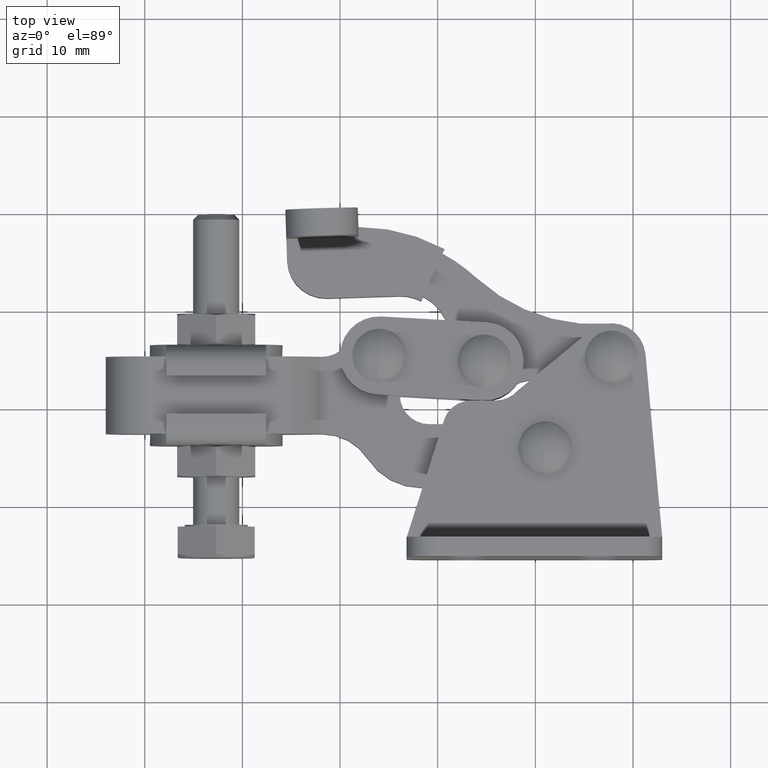
[diagram: clean part render]
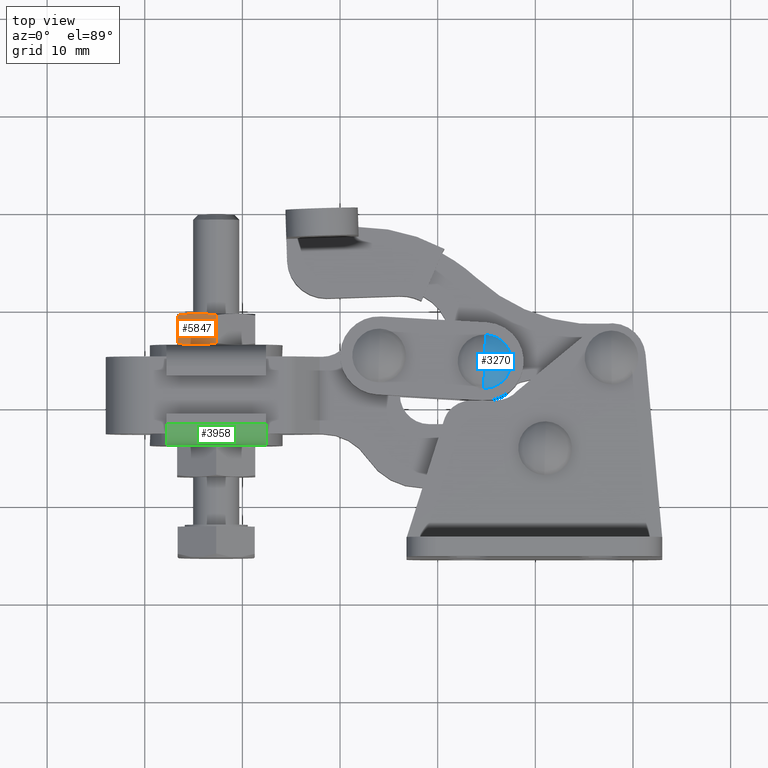
[diagram: same view with three faces highlighted in distinct colors, each labeled with its STEP entity id]
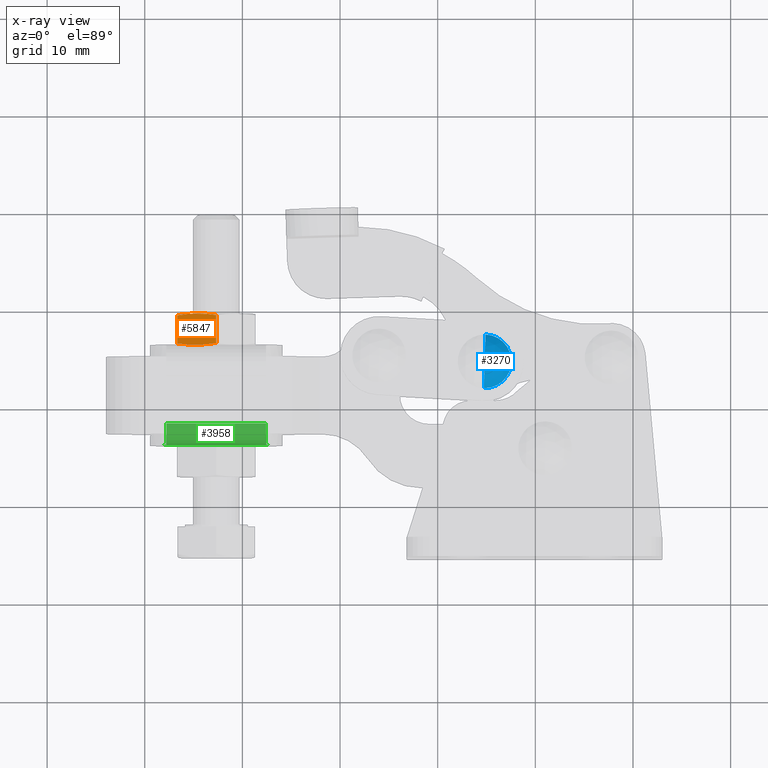
[diagram: x-ray of the same camera — body ghosted, the three highlighted faces saturated]
A machine part, top view with three faces highlighted in distinct colors.
The next image is the same camera in x-ray (body ghosted, the three faces saturated) — at least one of them is partly hidden behind the body in this view.
Their STEP definitions:

[orange] entity #5847 — the highlighted planar face has unit normal (-0.5, 0, 0.866).
#1 = LINE ( 'NONE', #4203, #8735 ) ;
#9 = VERTEX_POINT ( 'NONE', #7991 ) ;
#443 = VERTEX_POINT ( 'NONE', #7685 ) ;
#502 = EDGE_CURVE ( 'NONE', #2399, #5681, #8459, .T. ) ;
#769 = B_SPLINE_CURVE_WITH_KNOTS ( 'NONE', 3,
 ( #1884, #869, #1100, #3465 ),
 .UNSPECIFIED., .F., .F.,
 ( 4, 4 ),
 ( 0.002309632016866309800, 0.004619033093624826500 ),
 .UNSPECIFIED. ) ;
#869 = CARTESIAN_POINT ( 'NONE',  ( -45.34830938727169800, 29.49999999999994300, 1.079201435668463800 ) ) ;
#948 = CARTESIAN_POINT ( 'NONE',  ( -46.68164272060504100, 26.29999999999994700, 0.3094010767489573900 ) ) ;
#984 = FACE_OUTER_BOUND ( 'NONE', #8222, .T. ) ;
#990 = EDGE_CURVE ( 'NONE', #9, #6026, #7787, .T. ) ;
#1000 = CARTESIAN_POINT ( 'NONE',  ( -43.34830938727162700, 29.43732615494361200, 2.233901974047759300 ) ) ;
#1100 = CARTESIAN_POINT ( 'NONE',  ( -46.01497605393837600, 29.43732615494361200, 0.6943012562087109700 ) ) ;
#1169 = ORIENTED_EDGE ( 'NONE', *, *, #7075, .F. ) ;
#1195 = EDGE_CURVE ( 'NONE', #6026, #443, #769, .T. ) ;
#1512 = CARTESIAN_POINT ( 'NONE',  ( -46.68164272060504100, 26.46580753730947300, 0.3094010767489643300 ) ) ;
#1540 = ORIENTED_EDGE ( 'NONE', *, *, #7161, .T. ) ;
#1571 = DIRECTION ( 'NONE',  ( -0.4999999999999996700, 0.0000000000000000000, 0.8660254037844388200 ) ) ;
#1715 = VECTOR ( 'NONE', #7866, 1000.000000000000000 ) ;
#1773 = ORIENTED_EDGE ( 'NONE', *, *, #990, .T. ) ;
#1884 = CARTESIAN_POINT ( 'NONE',  ( -44.68164272060501900, 29.49999999999995000, 1.464101615128209800 ) ) ;
#2399 = VERTEX_POINT ( 'NONE', #3760 ) ;
#2744 = CARTESIAN_POINT ( 'NONE',  ( -44.01497605393832700, 26.29999999999995500, 1.849001794587987700 ) ) ;
#2806 = VERTEX_POINT ( 'NONE', #4629 ) ;
#2975 = AXIS2_PLACEMENT_3D ( 'NONE', #7508, #1571, #4138 ) ;
#3465 = CARTESIAN_POINT ( 'NONE',  ( -46.68164272060504100, 29.33419246269042400, 0.3094010767489643300 ) ) ;
#3760 = CARTESIAN_POINT ( 'NONE',  ( -42.68164272060499800, 26.46580753730947300, 2.618802153507670600 ) ) ;
#4061 = CARTESIAN_POINT ( 'NONE',  ( -44.68164272060501900, 29.49999999999995000, 1.464101615128209800 ) ) ;
#4138 = DIRECTION ( 'NONE',  ( 0.8660254037844388200, 0.0000000000000000000, 0.4999999999999996700 ) ) ;
#4150 = EDGE_CURVE ( 'NONE', #5681, #2806, #9951, .T. ) ;
#4203 = CARTESIAN_POINT ( 'NONE',  ( -42.68164272060499100, 26.29999999999994700, 2.618802153507670600 ) ) ;
#4331 = CARTESIAN_POINT ( 'NONE',  ( -44.68164272060501900, 29.49999999999995000, 1.464101615128209800 ) ) ;
#4629 = CARTESIAN_POINT ( 'NONE',  ( -46.68164272060504100, 26.46580753730947300, 0.3094010767489643300 ) ) ;
#5091 = CARTESIAN_POINT ( 'NONE',  ( -42.68164272060499800, 26.46580753730947300, 2.618802153507670600 ) ) ;
#5170 = CARTESIAN_POINT ( 'NONE',  ( -42.68164272060499800, 29.33419246269042400, 2.618802153507670600 ) ) ;
#5201 = ORIENTED_EDGE ( 'NONE', *, *, #1195, .T. ) ;
#5499 = CARTESIAN_POINT ( 'NONE',  ( -44.68164272060501900, 26.29999999999994700, 1.464101615128209800 ) ) ;
#5681 = VERTEX_POINT ( 'NONE', #5499 ) ;
#5817 = ORIENTED_EDGE ( 'NONE', *, *, #502, .F. ) ;
#5847 = ADVANCED_FACE ( 'NONE', ( #984 ), #9136, .T. ) ;
#6026 = VERTEX_POINT ( 'NONE', #4061 ) ;
#6089 = CARTESIAN_POINT ( 'NONE',  ( -44.68164272060501900, 26.29999999999994700, 1.464101615128209800 ) ) ;
#7075 = EDGE_CURVE ( 'NONE', #2806, #443, #9962, .T. ) ;
#7161 = EDGE_CURVE ( 'NONE', #2399, #9, #1, .T. ) ;
#7326 = ORIENTED_EDGE ( 'NONE', *, *, #4150, .F. ) ;
#7502 = CARTESIAN_POINT ( 'NONE',  ( -45.34830938727169800, 26.29999999999995500, 1.079201435668463600 ) ) ;
#7508 = CARTESIAN_POINT ( 'NONE',  ( -46.68164272060504100, 26.29999999999994700, 0.3094010767489573900 ) ) ;
#7589 = CARTESIAN_POINT ( 'NONE',  ( -43.34830938727162700, 26.36267384505628500, 2.233901974047759300 ) ) ;
#7685 = CARTESIAN_POINT ( 'NONE',  ( -46.68164272060504100, 29.33419246269042400, 0.3094010767489643300 ) ) ;
#7787 = B_SPLINE_CURVE_WITH_KNOTS ( 'NONE', 3,
 ( #5170, #1000, #9781, #4331 ),
 .UNSPECIFIED., .F., .F.,
 ( 4, 4 ),
 ( 2.309401076821950600E-007, 0.002309632016866309800 ),
 .UNSPECIFIED. ) ;
#7866 = DIRECTION ( 'NONE',  ( 0.0000000000000000000, 1.000000000000000000, 0.0000000000000000000 ) ) ;
#7991 = CARTESIAN_POINT ( 'NONE',  ( -42.68164272060499800, 29.33419246269042400, 2.618802153507670600 ) ) ;
#8222 = EDGE_LOOP ( 'NONE', ( #1540, #1773, #5201, #1169, #7326, #5817 ) ) ;
#8459 = B_SPLINE_CURVE_WITH_KNOTS ( 'NONE', 3,
 ( #5091, #7589, #2744, #9733 ),
 .UNSPECIFIED., .F., .F.,
 ( 4, 4 ),
 ( 2.309401076821950600E-007, 0.002309632016866309800 ),
 .UNSPECIFIED. ) ;
#8735 = VECTOR ( 'NONE', #9598, 1000.000000000000000 ) ;
#8937 = CARTESIAN_POINT ( 'NONE',  ( -46.01497605393837600, 26.36267384505628500, 0.6943012562087109700 ) ) ;
#9136 = PLANE ( 'NONE',  #2975 ) ;
#9598 = DIRECTION ( 'NONE',  ( 0.0000000000000000000, 1.000000000000000000, 0.0000000000000000000 ) ) ;
#9733 = CARTESIAN_POINT ( 'NONE',  ( -44.68164272060501900, 26.29999999999994700, 1.464101615128209800 ) ) ;
#9781 = CARTESIAN_POINT ( 'NONE',  ( -44.01497605393832700, 29.49999999999994300, 1.849001794587988000 ) ) ;
#9951 = B_SPLINE_CURVE_WITH_KNOTS ( 'NONE', 3,
 ( #6089, #7502, #8937, #1512 ),
 .UNSPECIFIED., .F., .F.,
 ( 4, 4 ),
 ( 0.002309632016866309800, 0.004619033093624826500 ),
 .UNSPECIFIED. ) ;
#9962 = LINE ( 'NONE', #948, #1715 ) ;

[blue] entity #3270 — the highlighted spherical surface has radius 3.751 mm.
#23 = CIRCLE ( 'NONE', #3808, 3.751041666666667900 ) ;
#292 = CARTESIAN_POINT ( 'NONE',  ( -15.11166011038284800, 27.34116079192017800, 2.000000000000010700 ) ) ;
#683 = DIRECTION ( 'NONE',  ( 0.03031252252822306400, 0.9995404699050338700, 0.0000000000000000000 ) ) ;
#719 = DIRECTION ( 'NONE',  ( 0.03031252252822306400, 0.9995404699050338700, 0.0000000000000000000 ) ) ;
#753 = AXIS2_PLACEMENT_3D ( 'NONE', #2454, #7824, #3228 ) ;
#1496 = AXIS2_PLACEMENT_3D ( 'NONE', #7244, #4919, #719 ) ;
#2370 = CIRCLE ( 'NONE', #753, 2.749999999999999600 ) ;
#2454 = CARTESIAN_POINT ( 'NONE',  ( -15.19501954733546100, 24.59242449968133600, 2.000000000000010700 ) ) ;
#3021 = VERTEX_POINT ( 'NONE', #292 ) ;
#3228 = DIRECTION ( 'NONE',  ( 0.9995404699050337600, -0.03031252252822348700, 0.0000000000000000000 ) ) ;
#3270 = ADVANCED_FACE ( 'NONE', ( #4730 ), #6082, .T. ) ;
#3342 = ORIENTED_EDGE ( 'NONE', *, *, #6169, .F. ) ;
#3681 = CARTESIAN_POINT ( 'NONE',  ( -15.19501954733546100, 24.59242449968133600, -0.5510416666666567700 ) ) ;
#3808 = AXIS2_PLACEMENT_3D ( 'NONE', #9963, #8510, #9186 ) ;
#3970 = EDGE_LOOP ( 'NONE', ( #3342, #6235, #9421 ) ) ;
#4730 = FACE_OUTER_BOUND ( 'NONE', #3970, .T. ) ;
#4768 = CARTESIAN_POINT ( 'NONE',  ( -15.27837898428807300, 21.84368820744249400, 2.000000000000010700 ) ) ;
#4919 = DIRECTION ( 'NONE',  ( -0.9995404699050338700, 0.03031252252822306400, -4.182456701777877500E-017 ) ) ;
#5771 = CIRCLE ( 'NONE', #5900, 3.751041666666667900 ) ;
#5900 = AXIS2_PLACEMENT_3D ( 'NONE', #3681, #7316, #683 ) ;
#5963 = VERTEX_POINT ( 'NONE', #8442 ) ;
#6082 = SPHERICAL_SURFACE ( 'NONE', #1496, 3.751041666666667500 ) ;
#6169 = EDGE_CURVE ( 'NONE', #7602, #5963, #23, .T. ) ;
#6219 = EDGE_CURVE ( 'NONE', #3021, #5963, #5771, .T. ) ;
#6235 = ORIENTED_EDGE ( 'NONE', *, *, #9361, .T. ) ;
#7244 = CARTESIAN_POINT ( 'NONE',  ( -15.19501954733546100, 24.59242449968133600, -0.5510416666666567700 ) ) ;
#7316 = DIRECTION ( 'NONE',  ( 0.9995404699050340900, -0.03031252252822301500, 4.182456701777878700E-017 ) ) ;
#7602 = VERTEX_POINT ( 'NONE', #4768 ) ;
#7824 = DIRECTION ( 'NONE',  ( -4.163336342344337000E-017, 6.938893903907228400E-018, 1.000000000000000000 ) ) ;
#8442 = CARTESIAN_POINT ( 'NONE',  ( -15.19501954733546100, 24.59242449968133600, 3.200000000000010400 ) ) ;
#8510 = DIRECTION ( 'NONE',  ( -0.9995404699050340900, 0.03031252252822313700, -4.182456701777878700E-017 ) ) ;
#9186 = DIRECTION ( 'NONE',  ( -0.03031252252822306400, -0.9995404699050338700, 0.0000000000000000000 ) ) ;
#9361 = EDGE_CURVE ( 'NONE', #7602, #3021, #2370, .T. ) ;
#9421 = ORIENTED_EDGE ( 'NONE', *, *, #6219, .T. ) ;
#9963 = CARTESIAN_POINT ( 'NONE',  ( -15.19501954733546100, 24.59242449968133600, -0.5510416666666567700 ) ) ;

[green] entity #3958 — the highlighted cylindrical surface (edge-blend (fillet) strip) has radius 2.2 mm, axis along (-1, -0, 0).
#15 = CARTESIAN_POINT ( 'NONE',  ( -37.58360388199261600, 18.19999999999972900, 4.199999999990546400 ) ) ;
#212 = VERTEX_POINT ( 'NONE', #4742 ) ;
#316 = ORIENTED_EDGE ( 'NONE', *, *, #1081, .T. ) ;
#411 = ORIENTED_EDGE ( 'NONE', *, *, #7849, .T. ) ;
#681 = DIRECTION ( 'NONE',  ( -1.000000000000000000, -2.628336274655625500E-018, 0.0000000000000000000 ) ) ;
#831 = ORIENTED_EDGE ( 'NONE', *, *, #6416, .T. ) ;
#1039 = VERTEX_POINT ( 'NONE', #15 ) ;
#1081 = EDGE_CURVE ( 'NONE', #1039, #9172, #2125, .T. ) ;
#1181 = FACE_OUTER_BOUND ( 'NONE', #2573, .T. ) ;
#1382 = VECTOR ( 'NONE', #8782, 1000.000000000000000 ) ;
#1622 = EDGE_CURVE ( 'NONE', #5977, #4621, #4251, .T. ) ;
#1744 = VERTEX_POINT ( 'NONE', #2805 ) ;
#1751 = AXIS2_PLACEMENT_3D ( 'NONE', #7073, #6782, #5154 ) ;
#2125 = LINE ( 'NONE', #4233, #3947 ) ;
#2469 = CARTESIAN_POINT ( 'NONE',  ( -48.18073355455205600, 15.99999999999982800, 1.999999999990430500 ) ) ;
#2494 = ORIENTED_EDGE ( 'NONE', *, *, #9701, .F. ) ;
#2573 = EDGE_LOOP ( 'NONE', ( #2494, #411, #2923, #316, #831, #5915, #6250 ) ) ;
#2578 = AXIS2_PLACEMENT_3D ( 'NONE', #9510, #4469, #9550 ) ;
#2805 = CARTESIAN_POINT ( 'NONE',  ( -42.68164272060499100, 15.99999999999989300, 1.999999999990456100 ) ) ;
#2923 = ORIENTED_EDGE ( 'NONE', *, *, #6239, .T. ) ;
#3005 = CARTESIAN_POINT ( 'NONE',  ( -47.77968155921736600, 18.19999999999972900, 4.199999999990546400 ) ) ;
#3457 = LINE ( 'NONE', #8034, #1382 ) ;
#3619 = DIRECTION ( 'NONE',  ( 0.0000000000000000000, 0.0000000000000000000, -1.000000000000000000 ) ) ;
#3650 = DIRECTION ( 'NONE',  ( -1.000000000000000000, -2.628336274655625500E-018, 0.0000000000000000000 ) ) ;
#3660 = CARTESIAN_POINT ( 'NONE',  ( -37.58360388199261600, 18.19999999999972900, 1.999999999990455600 ) ) ;
#3710 = VECTOR ( 'NONE', #681, 1000.000000000000000 ) ;
#3765 = CARTESIAN_POINT ( 'NONE',  ( -37.30938717547518000, 15.99999999999976400, 2.174369693529363700 ) ) ;
#3947 = VECTOR ( 'NONE', #8756, 1000.000000000000000 ) ;
#3958 = ADVANCED_FACE ( 'NONE', ( #1181 ), #7100, .T. ) ;
#4233 = CARTESIAN_POINT ( 'NONE',  ( -42.68164272060499100, 18.19999999999972600, 4.199999999990546400 ) ) ;
#4251 = B_SPLINE_CURVE_WITH_KNOTS ( 'NONE', 3,
 ( #7307, #5504, #4573, #4318 ),
 .UNSPECIFIED., .F., .F.,
 ( 4, 4 ),
 ( 3.626360489736113000E-017, 0.0006435504465738965700 ),
 .UNSPECIFIED. ) ;
#4275 = CIRCLE ( 'NONE', #2578, 2.199999999999964700 ) ;
#4318 = CARTESIAN_POINT ( 'NONE',  ( -47.77968155921736600, 16.05757147143691200, 2.499999999990473400 ) ) ;
#4469 = DIRECTION ( 'NONE',  ( 1.000000000000000000, 2.628336274655625500E-018, -0.0000000000000000000 ) ) ;
#4516 = CARTESIAN_POINT ( 'NONE',  ( -37.44312434039933600, 16.02042929326923500, 2.340851075751973400 ) ) ;
#4573 = CARTESIAN_POINT ( 'NONE',  ( -47.92016110081069500, 16.02042929326923800, 2.340851075751980500 ) ) ;
#4621 = VERTEX_POINT ( 'NONE', #7798 ) ;
#4742 = CARTESIAN_POINT ( 'NONE',  ( -37.18255188665798300, 15.99999999999982800, 1.999999999990447900 ) ) ;
#5154 = DIRECTION ( 'NONE',  ( 0.0000000000000000000, 0.0000000000000000000, -1.000000000000000000 ) ) ;
#5504 = CARTESIAN_POINT ( 'NONE',  ( -48.05389826573486500, 15.99999999999976000, 2.174369693529345100 ) ) ;
#5509 = CIRCLE ( 'NONE', #6390, 2.199999999999964700 ) ;
#5915 = ORIENTED_EDGE ( 'NONE', *, *, #1622, .F. ) ;
#5977 = VERTEX_POINT ( 'NONE', #2469 ) ;
#6239 = EDGE_CURVE ( 'NONE', #8940, #1039, #5509, .T. ) ;
#6250 = ORIENTED_EDGE ( 'NONE', *, *, #10013, .F. ) ;
#6390 = AXIS2_PLACEMENT_3D ( 'NONE', #3660, #3650, #3619 ) ;
#6416 = EDGE_CURVE ( 'NONE', #9172, #4621, #4275, .T. ) ;
#6782 = DIRECTION ( 'NONE',  ( -1.000000000000000000, -2.628336274655625500E-018, 0.0000000000000000000 ) ) ;
#7073 = CARTESIAN_POINT ( 'NONE',  ( -37.11656279665069700, 18.19999999999972900, 1.999999999990455600 ) ) ;
#7100 = CYLINDRICAL_SURFACE ( 'NONE', #1751, 2.199999999999964700 ) ;
#7247 = CARTESIAN_POINT ( 'NONE',  ( -37.58360388199261600, 16.05757147143691200, 2.499999999990473400 ) ) ;
#7307 = CARTESIAN_POINT ( 'NONE',  ( -48.18073355455205600, 15.99999999999982800, 1.999999999990430500 ) ) ;
#7767 = LINE ( 'NONE', #8387, #3710 ) ;
#7798 = CARTESIAN_POINT ( 'NONE',  ( -47.77968155921736600, 16.05757147143691200, 2.499999999990473400 ) ) ;
#7849 = EDGE_CURVE ( 'NONE', #212, #8940, #9175, .T. ) ;
#8034 = CARTESIAN_POINT ( 'NONE',  ( -42.68164272060499100, 15.99999999999989000, 1.999999999990455600 ) ) ;
#8376 = CARTESIAN_POINT ( 'NONE',  ( -37.18255188665798300, 15.99999999999982800, 1.999999999990447900 ) ) ;
#8387 = CARTESIAN_POINT ( 'NONE',  ( -42.68164272060499100, 15.99999999999989000, 1.999999999990455600 ) ) ;
#8756 = DIRECTION ( 'NONE',  ( -1.000000000000000000, -2.628336274655625500E-018, 0.0000000000000000000 ) ) ;
#8782 = DIRECTION ( 'NONE',  ( -1.000000000000000000, -2.628336274655625500E-018, 0.0000000000000000000 ) ) ;
#8940 = VERTEX_POINT ( 'NONE', #7247 ) ;
#9172 = VERTEX_POINT ( 'NONE', #3005 ) ;
#9175 = B_SPLINE_CURVE_WITH_KNOTS ( 'NONE', 3,
 ( #8376, #3765, #4516, #9940 ),
 .UNSPECIFIED., .F., .F.,
 ( 4, 4 ),
 ( 1.361094815542227900E-017, 0.0006435504465738248000 ),
 .UNSPECIFIED. ) ;
#9510 = CARTESIAN_POINT ( 'NONE',  ( -47.77968155921736600, 18.19999999999972900, 1.999999999990455600 ) ) ;
#9550 = DIRECTION ( 'NONE',  ( 0.0000000000000000000, 0.0000000000000000000, -1.000000000000000000 ) ) ;
#9701 = EDGE_CURVE ( 'NONE', #212, #1744, #7767, .T. ) ;
#9940 = CARTESIAN_POINT ( 'NONE',  ( -37.58360388199261600, 16.05757147143691200, 2.499999999990473400 ) ) ;
#10013 = EDGE_CURVE ( 'NONE', #1744, #5977, #3457, .T. ) ;